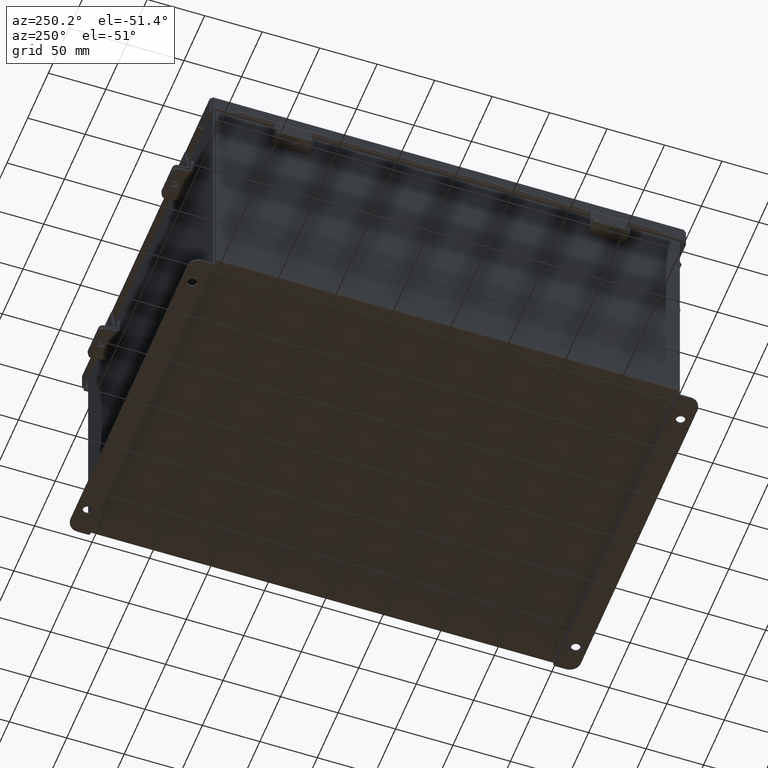
[diagram: clean part render]
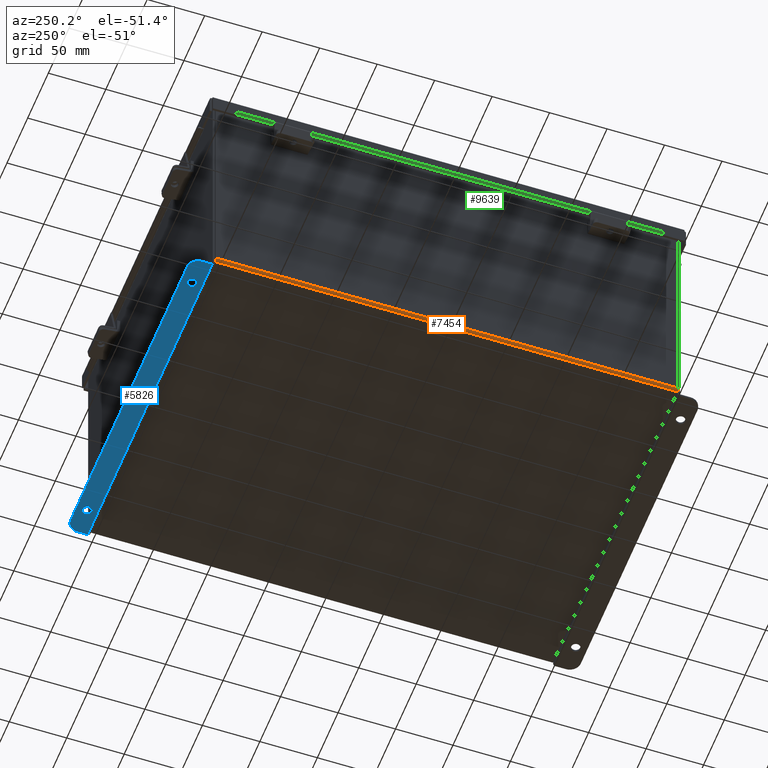
[diagram: same view with three faces highlighted in distinct colors, each labeled with its STEP entity id]
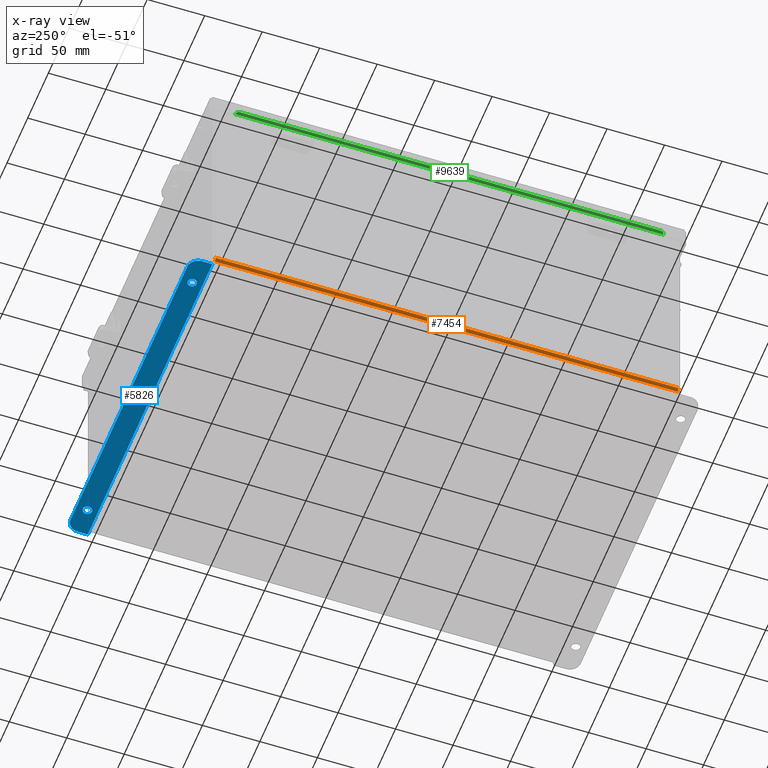
[diagram: x-ray of the same camera — body ghosted, the three highlighted faces saturated]
A machine part, auxiliary view with three faces highlighted in distinct colors.
The next image is the same camera in x-ray (body ghosted, the three faces saturated) — at least one of them is partly hidden behind the body in this view.
Their STEP definitions:

[orange] entity #7454 — the highlighted cylindrical surface (edge-blend (fillet) strip) has radius 2.2276 mm, axis along (0, -1, 0).
#164 = DIRECTION ( 'NONE',  ( -0.0000000000000000000, 1.000000000000000000, -0.0000000000000000000 ) ) ;
#325 = CYLINDRICAL_SURFACE ( 'NONE', #918, 0.08770000000000026400 ) ;
#444 = FACE_OUTER_BOUND ( 'NONE', #7090, .T. ) ;
#662 = VECTOR ( 'NONE', #9854, 39.37007874015748100 ) ;
#760 = LINE ( 'NONE', #7398, #662 ) ;
#918 = AXIS2_PLACEMENT_3D ( 'NONE', #2179, #5985, #1430 ) ;
#1191 = VERTEX_POINT ( 'NONE', #9527 ) ;
#1251 = VERTEX_POINT ( 'NONE', #6862 ) ;
#1430 = DIRECTION ( 'NONE',  ( -1.000000000000000000, 0.0000000000000000000, -3.480030137311043200E-015 ) ) ;
#1816 = VERTEX_POINT ( 'NONE', #6423 ) ;
#2004 = AXIS2_PLACEMENT_3D ( 'NONE', #6924, #2204, #3331 ) ;
#2179 = CARTESIAN_POINT ( 'NONE',  ( -5.912300000000000100, -7.925300000000000900, 0.01300000000000015000 ) ) ;
#2204 = DIRECTION ( 'NONE',  ( 0.0000000000000000000, -1.000000000000000000, 0.0000000000000000000 ) ) ;
#3331 = DIRECTION ( 'NONE',  ( 0.0000000000000000000, 0.0000000000000000000, -1.000000000000000000 ) ) ;
#3586 = DIRECTION ( 'NONE',  ( -0.0000000000000000000, 1.000000000000000000, -0.0000000000000000000 ) ) ;
#3731 = CIRCLE ( 'NONE', #8444, 0.08770000000000009700 ) ;
#4138 = ORIENTED_EDGE ( 'NONE', *, *, #6089, .T. ) ;
#4295 = LINE ( 'NONE', #4475, #4302 ) ;
#4302 = VECTOR ( 'NONE', #3586, 39.37007874015748100 ) ;
#4305 = ORIENTED_EDGE ( 'NONE', *, *, #4586, .F. ) ;
#4475 = CARTESIAN_POINT ( 'NONE',  ( -6.000000000000000900, 7.925299999999998200, 0.01299999999999984300 ) ) ;
#4586 = EDGE_CURVE ( 'NONE', #1251, #9641, #8904, .T. ) ;
#4654 = CARTESIAN_POINT ( 'NONE',  ( -5.912300000000000100, 7.925299999999998200, 0.01300000000000015000 ) ) ;
#5454 = DIRECTION ( 'NONE',  ( 0.0000000000000000000, 0.0000000000000000000, -1.000000000000000000 ) ) ;
#5530 = ORIENTED_EDGE ( 'NONE', *, *, #7443, .F. ) ;
#5985 = DIRECTION ( 'NONE',  ( 0.0000000000000000000, -1.000000000000000000, 0.0000000000000000000 ) ) ;
#6089 = EDGE_CURVE ( 'NONE', #1251, #1191, #4295, .T. ) ;
#6319 = EDGE_CURVE ( 'NONE', #1816, #1191, #3731, .T. ) ;
#6423 = CARTESIAN_POINT ( 'NONE',  ( -5.912300000000000100, 7.925299999999998200, -0.07470000000000000300 ) ) ;
#6862 = CARTESIAN_POINT ( 'NONE',  ( -6.000000000000000900, -7.925300000000000000, 0.01299999999999984300 ) ) ;
#6924 = CARTESIAN_POINT ( 'NONE',  ( -5.912300000000000100, -7.925300000000000000, 0.01300000000000015000 ) ) ;
#7090 = EDGE_LOOP ( 'NONE', ( #5530, #4305, #4138, #7719 ) ) ;
#7398 = CARTESIAN_POINT ( 'NONE',  ( -5.912300000000000100, -7.925300000000000900, -0.07469999999999994700 ) ) ;
#7443 = EDGE_CURVE ( 'NONE', #9641, #1816, #760, .T. ) ;
#7454 = ADVANCED_FACE ( 'NONE', ( #444 ), #325, .T. ) ;
#7599 = CARTESIAN_POINT ( 'NONE',  ( -5.912300000000000100, -7.925300000000000000, -0.07469999999999994700 ) ) ;
#7719 = ORIENTED_EDGE ( 'NONE', *, *, #6319, .F. ) ;
#8444 = AXIS2_PLACEMENT_3D ( 'NONE', #4654, #164, #5454 ) ;
#8904 = CIRCLE ( 'NONE', #2004, 0.08770000000000009700 ) ;
#9527 = CARTESIAN_POINT ( 'NONE',  ( -6.000000000000000900, 7.925299999999998200, 0.01299999999999984300 ) ) ;
#9641 = VERTEX_POINT ( 'NONE', #7599 ) ;
#9854 = DIRECTION ( 'NONE',  ( -0.0000000000000000000, 1.000000000000000000, -0.0000000000000000000 ) ) ;

[blue] entity #5826 — the highlighted planar face has unit normal (0, 0, 1).
#260 = VERTEX_POINT ( 'NONE', #4430 ) ;
#292 = CIRCLE ( 'NONE', #5292, 0.3750000000000000600 ) ;
#308 = EDGE_CURVE ( 'NONE', #3750, #6347, #3911, .T. ) ;
#340 = CARTESIAN_POINT ( 'NONE',  ( 4.987799999999998200, 0.2067999999999996000, -4.187000000000001200 ) ) ;
#357 = CARTESIAN_POINT ( 'NONE',  ( 0.0000000000000000000, 0.7378000000000000100, -4.187000000000003800 ) ) ;
#371 = CARTESIAN_POINT ( 'NONE',  ( 5.550299999999999100, 0.3627999999999997300, -4.187000000000002100 ) ) ;
#1056 = CARTESIAN_POINT ( 'NONE',  ( 4.987799999999998200, 0.5187999999999999300, -4.187000000000002900 ) ) ;
#1098 = DIRECTION ( 'NONE',  ( 0.0000000000000000000, -1.000000000000000000, 4.370956789862820400E-015 ) ) ;
#1133 = CARTESIAN_POINT ( 'NONE',  ( -5.550299999999999100, 0.3627999999999997300, -4.187000000000002100 ) ) ;
#1139 = DIRECTION ( 'NONE',  ( 0.0000000000000000000, -1.000000000000000000, 3.702694488566362300E-015 ) ) ;
#1278 = EDGE_CURVE ( 'NONE', #260, #7690, #5262, .T. ) ;
#1292 = CARTESIAN_POINT ( 'NONE',  ( 5.925299999999999100, 0.01300000000000010700, -4.187000000000001200 ) ) ;
#1296 = CARTESIAN_POINT ( 'NONE',  ( 4.987799999999998200, 0.3627999999999997300, -4.187000000000002100 ) ) ;
#1324 = DIRECTION ( 'NONE',  ( 0.0000000000000000000, 1.000000000000000000, -3.502369222646487000E-015 ) ) ;
#1383 = VERTEX_POINT ( 'NONE', #7395 ) ;
#1545 = ORIENTED_EDGE ( 'NONE', *, *, #1594, .T. ) ;
#1555 = CARTESIAN_POINT ( 'NONE',  ( -4.987800000000000900, 0.3627999999999997300, -4.187000000000002100 ) ) ;
#1594 = EDGE_CURVE ( 'NONE', #7600, #1383, #1641, .T. ) ;
#1641 = CIRCLE ( 'NONE', #7461, 0.3750000000000000600 ) ;
#1919 = AXIS2_PLACEMENT_3D ( 'NONE', #1555, #6181, #3719 ) ;
#2030 = ORIENTED_EDGE ( 'NONE', *, *, #3401, .T. ) ;
#2047 = DIRECTION ( 'NONE',  ( 0.0000000000000000000, 1.000000000000000000, -3.502369222646487000E-015 ) ) ;
#2254 = ORIENTED_EDGE ( 'NONE', *, *, #4639, .T. ) ;
#2357 = CIRCLE ( 'NONE', #2482, 0.1560000000000001900 ) ;
#2388 = CARTESIAN_POINT ( 'NONE',  ( 5.925299999999999100, 0.01300000000000010700, -4.187000000000001200 ) ) ;
#2482 = AXIS2_PLACEMENT_3D ( 'NONE', #1296, #6621, #2047 ) ;
#2586 = CARTESIAN_POINT ( 'NONE',  ( 5.925299999999999100, 0.3627999999999997300, -4.187000000000002100 ) ) ;
#2587 = VERTEX_POINT ( 'NONE', #4712 ) ;
#2687 = LINE ( 'NONE', #3455, #6556 ) ;
#2947 = CARTESIAN_POINT ( 'NONE',  ( 4.987799999999998200, 0.3627999999999997300, -4.187000000000002100 ) ) ;
#3046 = CARTESIAN_POINT ( 'NONE',  ( 0.0000000000000000000, -1.529834876451987200E-014, -4.187000000000001200 ) ) ;
#3074 = CARTESIAN_POINT ( 'NONE',  ( -4.987800000000000900, 0.3627999999999997300, -4.187000000000002100 ) ) ;
#3264 = DIRECTION ( 'NONE',  ( 0.0000000000000000000, -3.702694488566362300E-015, -1.000000000000000000 ) ) ;
#3401 = EDGE_CURVE ( 'NONE', #5174, #7600, #2687, .T. ) ;
#3455 = CARTESIAN_POINT ( 'NONE',  ( -5.925300000000001800, -1.529834876451987200E-014, -4.187000000000001200 ) ) ;
#3635 = AXIS2_PLACEMENT_3D ( 'NONE', #2947, #3264, #4690 ) ;
#3719 = DIRECTION ( 'NONE',  ( 0.0000000000000000000, 1.000000000000000000, -3.502369222646487000E-015 ) ) ;
#3750 = VERTEX_POINT ( 'NONE', #2586 ) ;
#3911 = LINE ( 'NONE', #5999, #6637 ) ;
#3952 = VERTEX_POINT ( 'NONE', #1056 ) ;
#4242 = ORIENTED_EDGE ( 'NONE', *, *, #1278, .F. ) ;
#4323 = ORIENTED_EDGE ( 'NONE', *, *, #8680, .T. ) ;
#4430 = CARTESIAN_POINT ( 'NONE',  ( -4.987800000000000900, 0.2067999999999996000, -4.187000000000001200 ) ) ;
#4465 = EDGE_LOOP ( 'NONE', ( #4779, #7747 ) ) ;
#4639 = EDGE_CURVE ( 'NONE', #1383, #2587, #9012, .T. ) ;
#4690 = DIRECTION ( 'NONE',  ( 0.0000000000000000000, 1.000000000000000000, -3.502369222646487000E-015 ) ) ;
#4712 = CARTESIAN_POINT ( 'NONE',  ( 5.550299999999999100, 0.7378000000000000100, -4.187000000000003800 ) ) ;
#4779 = ORIENTED_EDGE ( 'NONE', *, *, #5842, .F. ) ;
#5008 = FACE_BOUND ( 'NONE', #4465, .T. ) ;
#5023 = CIRCLE ( 'NONE', #3635, 0.1560000000000001900 ) ;
#5038 = FACE_OUTER_BOUND ( 'NONE', #9353, .T. ) ;
#5095 = CARTESIAN_POINT ( 'NONE',  ( -5.925300000000000000, 0.01300000000000010700, -4.187000000000001200 ) ) ;
#5157 = FACE_BOUND ( 'NONE', #6390, .T. ) ;
#5174 = VERTEX_POINT ( 'NONE', #5095 ) ;
#5175 = EDGE_CURVE ( 'NONE', #7690, #260, #7165, .T. ) ;
#5262 = CIRCLE ( 'NONE', #1919, 0.1560000000000001900 ) ;
#5292 = AXIS2_PLACEMENT_3D ( 'NONE', #371, #5655, #1098 ) ;
#5655 = DIRECTION ( 'NONE',  ( -0.0000000000000000000, -3.702694488566362300E-015, -1.000000000000000000 ) ) ;
#5826 = ADVANCED_FACE ( 'NONE', ( #5157, #5008, #5038 ), #6242, .F. ) ;
#5842 = EDGE_CURVE ( 'NONE', #3952, #8670, #5023, .T. ) ;
#5999 = CARTESIAN_POINT ( 'NONE',  ( 5.925299999999999100, -1.529834876451987200E-014, -4.187000000000001200 ) ) ;
#6181 = DIRECTION ( 'NONE',  ( 0.0000000000000000000, -3.702694488566362300E-015, -1.000000000000000000 ) ) ;
#6242 = PLANE ( 'NONE',  #6933 ) ;
#6301 = DIRECTION ( 'NONE',  ( 0.0000000000000000000, 1.000000000000000000, -3.702694488566362300E-015 ) ) ;
#6347 = VERTEX_POINT ( 'NONE', #2388 ) ;
#6350 = DIRECTION ( 'NONE',  ( 0.0000000000000000000, -1.000000000000000000, 3.702694488566362300E-015 ) ) ;
#6390 = EDGE_LOOP ( 'NONE', ( #8384, #4242 ) ) ;
#6556 = VECTOR ( 'NONE', #6301, 39.37007874015748100 ) ;
#6617 = DIRECTION ( 'NONE',  ( 1.000000000000000000, 4.610480471308228800E-017, -1.707120063075582100E-031 ) ) ;
#6621 = DIRECTION ( 'NONE',  ( 0.0000000000000000000, -3.702694488566362300E-015, -1.000000000000000000 ) ) ;
#6637 = VECTOR ( 'NONE', #6350, 39.37007874015748100 ) ;
#6671 = LINE ( 'NONE', #1292, #8742 ) ;
#6933 = AXIS2_PLACEMENT_3D ( 'NONE', #3046, #9316, #1139 ) ;
#7165 = CIRCLE ( 'NONE', #9577, 0.1560000000000001900 ) ;
#7260 = DIRECTION ( 'NONE',  ( 0.0000000000000000000, -1.000000000000000000, 4.370956789862820400E-015 ) ) ;
#7395 = CARTESIAN_POINT ( 'NONE',  ( -5.550299999999999100, 0.7378000000000000100, -4.187000000000003800 ) ) ;
#7461 = AXIS2_PLACEMENT_3D ( 'NONE', #1133, #8762, #7260 ) ;
#7600 = VERTEX_POINT ( 'NONE', #7605 ) ;
#7603 = ORIENTED_EDGE ( 'NONE', *, *, #8807, .F. ) ;
#7605 = CARTESIAN_POINT ( 'NONE',  ( -5.925300000000001800, 0.3627999999999997300, -4.187000000000002100 ) ) ;
#7682 = CARTESIAN_POINT ( 'NONE',  ( -4.987800000000000900, 0.5187999999999999300, -4.187000000000002900 ) ) ;
#7690 = VERTEX_POINT ( 'NONE', #7682 ) ;
#7747 = ORIENTED_EDGE ( 'NONE', *, *, #9410, .F. ) ;
#8072 = ORIENTED_EDGE ( 'NONE', *, *, #308, .T. ) ;
#8152 = DIRECTION ( 'NONE',  ( 1.000000000000000000, 0.0000000000000000000, -0.0000000000000000000 ) ) ;
#8298 = DIRECTION ( 'NONE',  ( 0.0000000000000000000, -3.702694488566362300E-015, -1.000000000000000000 ) ) ;
#8384 = ORIENTED_EDGE ( 'NONE', *, *, #5175, .F. ) ;
#8670 = VERTEX_POINT ( 'NONE', #340 ) ;
#8680 = EDGE_CURVE ( 'NONE', #2587, #3750, #292, .T. ) ;
#8742 = VECTOR ( 'NONE', #6617, 39.37007874015748100 ) ;
#8757 = VECTOR ( 'NONE', #8152, 39.37007874015748100 ) ;
#8762 = DIRECTION ( 'NONE',  ( -0.0000000000000000000, -3.702694488566362300E-015, -1.000000000000000000 ) ) ;
#8807 = EDGE_CURVE ( 'NONE', #5174, #6347, #6671, .T. ) ;
#9012 = LINE ( 'NONE', #357, #8757 ) ;
#9316 = DIRECTION ( 'NONE',  ( 0.0000000000000000000, 3.702694488566362300E-015, 1.000000000000000000 ) ) ;
#9353 = EDGE_LOOP ( 'NONE', ( #2254, #4323, #8072, #7603, #2030, #1545 ) ) ;
#9410 = EDGE_CURVE ( 'NONE', #8670, #3952, #2357, .T. ) ;
#9577 = AXIS2_PLACEMENT_3D ( 'NONE', #3074, #8298, #1324 ) ;

[green] entity #9639 — the highlighted planar face has unit normal (0.5, -0, 0.866).
#68 = VECTOR ( 'NONE', #9457, 39.37007874015748100 ) ;
#252 = CIRCLE ( 'NONE', #8220, 0.1000000000000008500 ) ;
#297 = LINE ( 'NONE', #4813, #68 ) ;
#382 = EDGE_LOOP ( 'NONE', ( #3339, #3388, #3176, #6309, #2130, #3685 ) ) ;
#596 = DIRECTION ( 'NONE',  ( -9.690176394912289900E-017, 1.000000000000000000, 5.594625950099643000E-017 ) ) ;
#757 = DIRECTION ( 'NONE',  ( -0.8660254037844394800, 0.0000000000000000000, 0.4999999999999986100 ) ) ;
#886 = EDGE_CURVE ( 'NONE', #4359, #4432, #9389, .T. ) ;
#894 = AXIS2_PLACEMENT_3D ( 'NONE', #2267, #9212, #4575 ) ;
#1102 = VECTOR ( 'NONE', #3529, 39.37007874015748100 ) ;
#1110 = LINE ( 'NONE', #8075, #1102 ) ;
#1226 = CARTESIAN_POINT ( 'NONE',  ( 6.211453810567687300, 7.324478932188134700, 0.6046841953253937500 ) ) ;
#1631 = DIRECTION ( 'NONE',  ( 0.5000000000000010000, 1.772471846418453900E-029, 0.8660254037844380400 ) ) ;
#1962 = EDGE_CURVE ( 'NONE', #5531, #4815, #252, .T. ) ;
#2036 = CARTESIAN_POINT ( 'NONE',  ( 6.211453810567687300, 7.224478932188135100, 0.6046841953253937500 ) ) ;
#2130 = ORIENTED_EDGE ( 'NONE', *, *, #7969, .T. ) ;
#2267 = CARTESIAN_POINT ( 'NONE',  ( 1.814699389851301300, 0.0000000000000000000, 3.143151543686694800 ) ) ;
#2336 = CARTESIAN_POINT ( 'NONE',  ( 6.298056350946121800, 7.324478932188134700, 0.5546841953253951500 ) ) ;
#2512 = CARTESIAN_POINT ( 'NONE',  ( 6.207100000000022700, -7.324478932188135600, 0.6071978690286382600 ) ) ;
#3039 = PLANE ( 'NONE',  #894 ) ;
#3176 = ORIENTED_EDGE ( 'NONE', *, *, #7272, .T. ) ;
#3291 = CARTESIAN_POINT ( 'NONE',  ( 6.211453810567687300, -7.324478932188134700, 0.6046841953253948600 ) ) ;
#3339 = ORIENTED_EDGE ( 'NONE', *, *, #9055, .T. ) ;
#3388 = ORIENTED_EDGE ( 'NONE', *, *, #1962, .T. ) ;
#3529 = DIRECTION ( 'NONE',  ( -0.8660254037844380400, 6.557406274649634000E-030, 0.5000000000000010000 ) ) ;
#3685 = ORIENTED_EDGE ( 'NONE', *, *, #886, .T. ) ;
#3725 = AXIS2_PLACEMENT_3D ( 'NONE', #9653, #1631, #3730 ) ;
#3730 = DIRECTION ( 'NONE',  ( -0.8660254037844394800, 0.0000000000000000000, 0.4999999999999986100 ) ) ;
#4273 = FACE_OUTER_BOUND ( 'NONE', #382, .T. ) ;
#4359 = VERTEX_POINT ( 'NONE', #3291 ) ;
#4432 = VERTEX_POINT ( 'NONE', #9818 ) ;
#4575 = DIRECTION ( 'NONE',  ( -0.8660254037844380400, 6.557406274649634000E-030, 0.5000000000000010000 ) ) ;
#4741 = LINE ( 'NONE', #2336, #6779 ) ;
#4813 = CARTESIAN_POINT ( 'NONE',  ( 6.298056350946121800, -7.324478932188134700, 0.5546841953253951500 ) ) ;
#4815 = VERTEX_POINT ( 'NONE', #1226 ) ;
#5102 = EDGE_CURVE ( 'NONE', #7926, #9202, #7642, .T. ) ;
#5123 = CARTESIAN_POINT ( 'NONE',  ( 6.298056350946121800, 7.224478932188135100, 0.5546841953253951500 ) ) ;
#5531 = VERTEX_POINT ( 'NONE', #5123 ) ;
#6309 = ORIENTED_EDGE ( 'NONE', *, *, #5102, .F. ) ;
#6779 = VECTOR ( 'NONE', #7671, 39.37007874015748100 ) ;
#7262 = VECTOR ( 'NONE', #596, 39.37007874015748100 ) ;
#7272 = EDGE_CURVE ( 'NONE', #4815, #9202, #1110, .T. ) ;
#7642 = LINE ( 'NONE', #8823, #7262 ) ;
#7671 = DIRECTION ( 'NONE',  ( 3.166671605124525800E-030, 1.000000000000000000, 1.853823127269377700E-029 ) ) ;
#7823 = CARTESIAN_POINT ( 'NONE',  ( 6.207100000000020900, 7.324478932188133800, 0.6071978690286371500 ) ) ;
#7926 = VERTEX_POINT ( 'NONE', #2512 ) ;
#7969 = EDGE_CURVE ( 'NONE', #7926, #4359, #297, .T. ) ;
#8075 = CARTESIAN_POINT ( 'NONE',  ( 6.193600000000021300, 7.324478932188134700, 0.6149920976627059100 ) ) ;
#8220 = AXIS2_PLACEMENT_3D ( 'NONE', #2036, #9574, #757 ) ;
#8823 = CARTESIAN_POINT ( 'NONE',  ( 6.207100000000022700, 5.629100846319917500E-016, 0.6071978690286448100 ) ) ;
#9055 = EDGE_CURVE ( 'NONE', #4432, #5531, #4741, .T. ) ;
#9202 = VERTEX_POINT ( 'NONE', #7823 ) ;
#9212 = DIRECTION ( 'NONE',  ( -0.5000000000000010000, -1.772471846418453900E-029, -0.8660254037844380400 ) ) ;
#9389 = CIRCLE ( 'NONE', #3725, 0.1000000000000008500 ) ;
#9457 = DIRECTION ( 'NONE',  ( 0.8660254037844383700, -6.545080323005555700E-030, -0.5000000000000003300 ) ) ;
#9574 = DIRECTION ( 'NONE',  ( 0.5000000000000010000, 1.772471846418453900E-029, 0.8660254037844380400 ) ) ;
#9639 = ADVANCED_FACE ( 'NONE', ( #4273 ), #3039, .F. ) ;
#9653 = CARTESIAN_POINT ( 'NONE',  ( 6.211453810567687300, -7.224478932188135100, 0.6046841953253948600 ) ) ;
#9818 = CARTESIAN_POINT ( 'NONE',  ( 6.298056350946121800, -7.224478932188135100, 0.5546841953253951500 ) ) ;